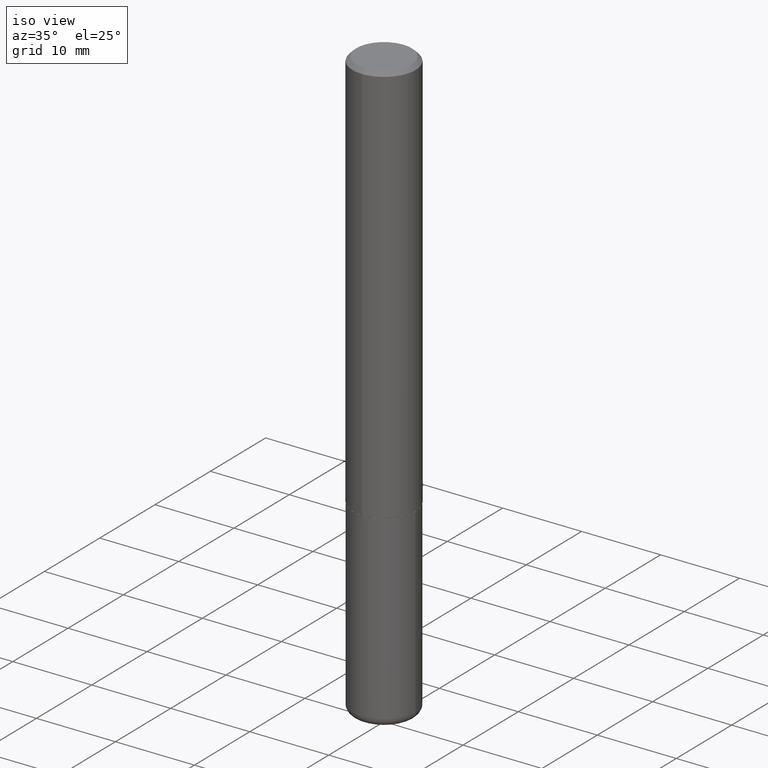
[diagram: clean part render]
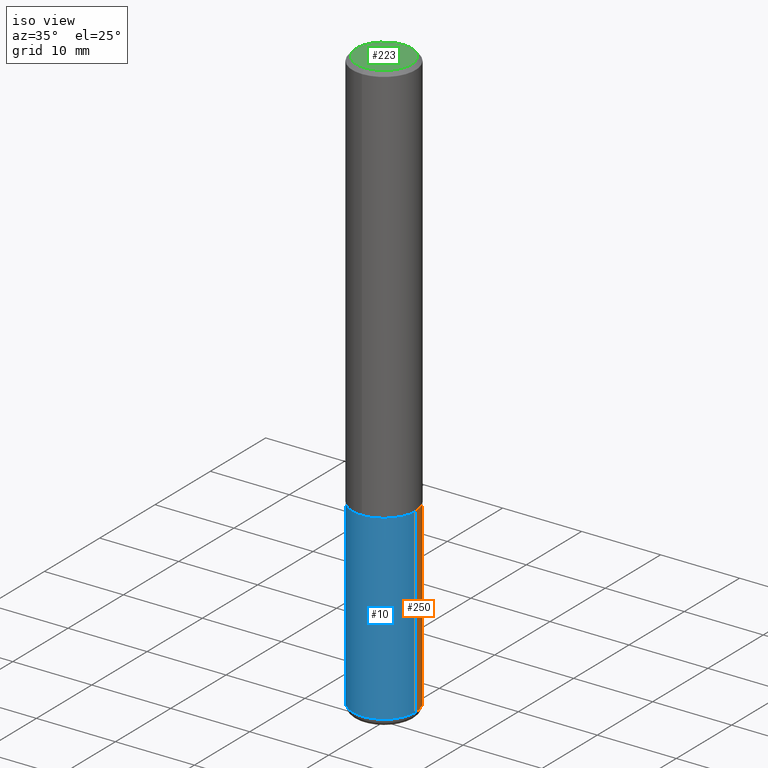
[diagram: same view with three faces highlighted in distinct colors, each labeled with its STEP entity id]
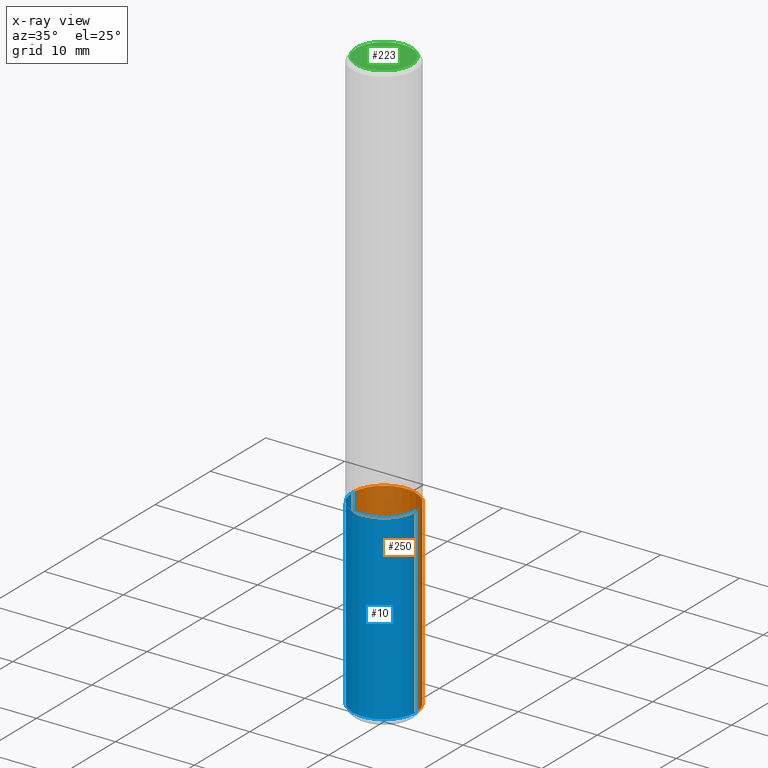
[diagram: x-ray of the same camera — body ghosted, the three highlighted faces saturated]
A machine part, iso view with three faces highlighted in distinct colors.
The next image is the same camera in x-ray (body ghosted, the three faces saturated) — at least one of them is partly hidden behind the body in this view.
Their STEP definitions:

[orange] entity #250 — the highlighted cylindrical surface (partial cylindrical patch) has radius 4.0005 mm, axis along (-0, 0, 1).
#4 = CARTESIAN_POINT ( 'NONE',  ( 0.1575000000000000011, -1.099816621735586889E-15, 7.679978421878598033E-30 ) ) ;
#6 = CARTESIAN_POINT ( 'NONE',  ( -0.1575000000000000289, -9.052976923763463288E-15, -2.913399999999999768 ) ) ;
#20 = CARTESIAN_POINT ( 'NONE',  ( 4.910256815939135309E-29, -7.010545380263150922E-15, -2.007899999999999796 ) ) ;
#30 = VECTOR ( 'NONE', #245, 39.37007874015748143 ) ;
#32 = CARTESIAN_POINT ( 'NONE',  ( -0.1575000000000000011, -7.472208747602227514E-15, -2.007899999999999796 ) ) ;
#51 = DIRECTION ( 'NONE',  ( 1.000000000000000000, -6.982962677686265922E-15, 4.876176775795935232E-29 ) ) ;
#62 = VERTEX_POINT ( 'NONE', #6 ) ;
#75 = DIRECTION ( 'NONE',  ( -2.445468806185136597E-29, 3.491481338843145583E-15, 1.000000000000000000 ) ) ;
#93 = VERTEX_POINT ( 'NONE', #251 ) ;
#117 = EDGE_CURVE ( 'NONE', #93, #124, #242, .T. ) ;
#124 = VERTEX_POINT ( 'NONE', #32 ) ;
#140 = EDGE_CURVE ( 'NONE', #368, #62, #312, .T. ) ;
#150 = DIRECTION ( 'NONE',  ( 1.000000000000000000, -6.982962677686268288E-15, 0.000000000000000000 ) ) ;
#164 = LINE ( 'NONE', #347, #306 ) ;
#166 = DIRECTION ( 'NONE',  ( -2.445468806185136597E-29, 3.491481338843145583E-15, 1.000000000000000000 ) ) ;
#186 = AXIS2_PLACEMENT_3D ( 'NONE', #194, #166, #400 ) ;
#194 = CARTESIAN_POINT ( 'NONE',  ( 7.124628819939776708E-29, -1.017208173258561931E-14, -2.913399999999999768 ) ) ;
#214 = AXIS2_PLACEMENT_3D ( 'NONE', #236, #75, #51 ) ;
#224 = LINE ( 'NONE', #4, #30 ) ;
#236 = CARTESIAN_POINT ( 'NONE',  ( 0.000000000000000000, 0.000000000000000000, 0.000000000000000000 ) ) ;
#241 = CYLINDRICAL_SURFACE ( 'NONE', #214, 0.1575000000000000011 ) ;
#242 = CIRCLE ( 'NONE', #334, 0.1575000000000000011 ) ;
#245 = DIRECTION ( 'NONE',  ( -2.445468806185136877E-29, 3.491481338843145188E-15, 1.000000000000000000 ) ) ;
#250 = ADVANCED_FACE ( 'NONE', ( #395 ), #241, .T. ) ;
#251 = CARTESIAN_POINT ( 'NONE',  ( 0.1575000000000000011, -8.110362001998737613E-15, -2.007899999999999796 ) ) ;
#306 = VECTOR ( 'NONE', #350, 39.37007874015748143 ) ;
#312 = CIRCLE ( 'NONE', #186, 0.1575000000000000011 ) ;
#316 = EDGE_CURVE ( 'NONE', #368, #93, #224, .T. ) ;
#322 = EDGE_CURVE ( 'NONE', #62, #124, #164, .T. ) ;
#334 = AXIS2_PLACEMENT_3D ( 'NONE', #20, #382, #150 ) ;
#335 = CARTESIAN_POINT ( 'NONE',  ( 0.1575000000000000289, -1.127189835432120758E-14, -2.913399999999999768 ) ) ;
#343 = EDGE_LOOP ( 'NONE', ( #387, #353, #364, #391 ) ) ;
#347 = CARTESIAN_POINT ( 'NONE',  ( -0.1575000000000000011, 1.119104808822157801E-15, -7.747322767151475583E-30 ) ) ;
#350 = DIRECTION ( 'NONE',  ( -2.445468806185136877E-29, 3.491481338843145188E-15, 1.000000000000000000 ) ) ;
#353 = ORIENTED_EDGE ( 'NONE', *, *, #322, .T. ) ;
#364 = ORIENTED_EDGE ( 'NONE', *, *, #117, .F. ) ;
#368 = VERTEX_POINT ( 'NONE', #335 ) ;
#382 = DIRECTION ( 'NONE',  ( -2.445468806185136597E-29, 3.491481338843145583E-15, 1.000000000000000000 ) ) ;
#387 = ORIENTED_EDGE ( 'NONE', *, *, #140, .T. ) ;
#391 = ORIENTED_EDGE ( 'NONE', *, *, #316, .F. ) ;
#395 = FACE_OUTER_BOUND ( 'NONE', #343, .T. ) ;
#400 = DIRECTION ( 'NONE',  ( 1.000000000000000000, -6.982962677686261977E-15, 0.000000000000000000 ) ) ;

[blue] entity #10 — the highlighted cylindrical surface (partial cylindrical patch) has radius 4.0005 mm, axis along (-0, 0, 1).
#1 = AXIS2_PLACEMENT_3D ( 'NONE', #279, #302, #403 ) ;
#4 = CARTESIAN_POINT ( 'NONE',  ( 0.1575000000000000011, -1.099816621735586889E-15, 7.679978421878598033E-30 ) ) ;
#6 = CARTESIAN_POINT ( 'NONE',  ( -0.1575000000000000289, -9.052976923763463288E-15, -2.913399999999999768 ) ) ;
#10 = ADVANCED_FACE ( 'NONE', ( #182 ), #106, .T. ) ;
#16 = CARTESIAN_POINT ( 'NONE',  ( 4.910256815939135309E-29, -7.010545380263150922E-15, -2.007899999999999796 ) ) ;
#30 = VECTOR ( 'NONE', #245, 39.37007874015748143 ) ;
#32 = CARTESIAN_POINT ( 'NONE',  ( -0.1575000000000000011, -7.472208747602227514E-15, -2.007899999999999796 ) ) ;
#34 = EDGE_LOOP ( 'NONE', ( #179, #127, #293, #83 ) ) ;
#53 = CIRCLE ( 'NONE', #101, 0.1575000000000000011 ) ;
#62 = VERTEX_POINT ( 'NONE', #6 ) ;
#83 = ORIENTED_EDGE ( 'NONE', *, *, #281, .F. ) ;
#93 = VERTEX_POINT ( 'NONE', #251 ) ;
#101 = AXIS2_PLACEMENT_3D ( 'NONE', #16, #276, #103 ) ;
#103 = DIRECTION ( 'NONE',  ( 1.000000000000000000, -6.982962677686268288E-15, 0.000000000000000000 ) ) ;
#106 = CYLINDRICAL_SURFACE ( 'NONE', #1, 0.1575000000000000011 ) ;
#124 = VERTEX_POINT ( 'NONE', #32 ) ;
#127 = ORIENTED_EDGE ( 'NONE', *, *, #286, .T. ) ;
#149 = DIRECTION ( 'NONE',  ( -2.445468806185136597E-29, 3.491481338843145583E-15, 1.000000000000000000 ) ) ;
#164 = LINE ( 'NONE', #347, #306 ) ;
#179 = ORIENTED_EDGE ( 'NONE', *, *, #322, .F. ) ;
#182 = FACE_OUTER_BOUND ( 'NONE', #34, .T. ) ;
#183 = CARTESIAN_POINT ( 'NONE',  ( 7.124628819939776708E-29, -1.017208173258561931E-14, -2.913399999999999768 ) ) ;
#224 = LINE ( 'NONE', #4, #30 ) ;
#245 = DIRECTION ( 'NONE',  ( -2.445468806185136877E-29, 3.491481338843145188E-15, 1.000000000000000000 ) ) ;
#251 = CARTESIAN_POINT ( 'NONE',  ( 0.1575000000000000011, -8.110362001998737613E-15, -2.007899999999999796 ) ) ;
#253 = CIRCLE ( 'NONE', #317, 0.1575000000000000011 ) ;
#276 = DIRECTION ( 'NONE',  ( -2.445468806185136597E-29, 3.491481338843145583E-15, 1.000000000000000000 ) ) ;
#279 = CARTESIAN_POINT ( 'NONE',  ( 0.000000000000000000, 0.000000000000000000, 0.000000000000000000 ) ) ;
#281 = EDGE_CURVE ( 'NONE', #124, #93, #53, .T. ) ;
#286 = EDGE_CURVE ( 'NONE', #62, #368, #253, .T. ) ;
#293 = ORIENTED_EDGE ( 'NONE', *, *, #316, .T. ) ;
#302 = DIRECTION ( 'NONE',  ( -2.445468806185136597E-29, 3.491481338843145583E-15, 1.000000000000000000 ) ) ;
#306 = VECTOR ( 'NONE', #350, 39.37007874015748143 ) ;
#316 = EDGE_CURVE ( 'NONE', #368, #93, #224, .T. ) ;
#317 = AXIS2_PLACEMENT_3D ( 'NONE', #183, #149, #410 ) ;
#322 = EDGE_CURVE ( 'NONE', #62, #124, #164, .T. ) ;
#335 = CARTESIAN_POINT ( 'NONE',  ( 0.1575000000000000289, -1.127189835432120758E-14, -2.913399999999999768 ) ) ;
#347 = CARTESIAN_POINT ( 'NONE',  ( -0.1575000000000000011, 1.119104808822157801E-15, -7.747322767151475583E-30 ) ) ;
#350 = DIRECTION ( 'NONE',  ( -2.445468806185136877E-29, 3.491481338843145188E-15, 1.000000000000000000 ) ) ;
#368 = VERTEX_POINT ( 'NONE', #335 ) ;
#403 = DIRECTION ( 'NONE',  ( 1.000000000000000000, -6.982962677686265922E-15, 4.876176775795935232E-29 ) ) ;
#410 = DIRECTION ( 'NONE',  ( 1.000000000000000000, -6.982962677686261977E-15, 0.000000000000000000 ) ) ;

[green] entity #223 — the highlighted planar face has unit normal (0, -0, -1).
#8 = CARTESIAN_POINT ( 'NONE',  ( -1.011923454671299856E-15, -0.1374999999999997335, 7.578230169990059811E-16 ) ) ;
#17 = PLANE ( 'NONE',  #154 ) ;
#29 = DIRECTION ( 'NONE',  ( -2.444729828315544280E-29, 3.492539597212409932E-15, 1.000000000000000000 ) ) ;
#35 = ORIENTED_EDGE ( 'NONE', *, *, #413, .T. ) ;
#42 = CARTESIAN_POINT ( 'NONE',  ( 9.601573681818597005E-16, 0.1374999999999997335, -3.414247834255550788E-16 ) ) ;
#104 = DIRECTION ( 'NONE',  ( 2.444729828315543719E-29, -3.492539597212410327E-15, -1.000000000000000000 ) ) ;
#109 = EDGE_CURVE ( 'NONE', #394, #246, #267, .T. ) ;
#134 = CARTESIAN_POINT ( 'NONE',  ( -6.786541213832790321E-45, 9.695248793097192351E-31, 2.775988223823005522E-16 ) ) ;
#154 = AXIS2_PLACEMENT_3D ( 'NONE', #42, #104, #300 ) ;
#174 = DIRECTION ( 'NONE',  ( -2.444729828315544280E-29, 3.492539597212409932E-15, 1.000000000000000000 ) ) ;
#185 = AXIS2_PLACEMENT_3D ( 'NONE', #303, #29, #255 ) ;
#196 = EDGE_LOOP ( 'NONE', ( #310, #35 ) ) ;
#223 = ADVANCED_FACE ( 'NONE', ( #362 ), #17, .F. ) ;
#238 = DIRECTION ( 'NONE',  ( -6.982962677686265922E-15, -1.000000000000000000, 3.492539597212410327E-15 ) ) ;
#243 = AXIS2_PLACEMENT_3D ( 'NONE', #134, #174, #238 ) ;
#246 = VERTEX_POINT ( 'NONE', #8 ) ;
#255 = DIRECTION ( 'NONE',  ( -6.982962677686265922E-15, -1.000000000000000000, 3.492539597212410327E-15 ) ) ;
#267 = CIRCLE ( 'NONE', #185, 0.1374999999999997335 ) ;
#273 = CARTESIAN_POINT ( 'NONE',  ( 1.029986994958723590E-15, 0.1374999999999997335, -2.026253722344048274E-16 ) ) ;
#300 = DIRECTION ( 'NONE',  ( 6.982962677686265922E-15, 1.000000000000000000, -3.492539597212410327E-15 ) ) ;
#303 = CARTESIAN_POINT ( 'NONE',  ( -6.786541213832790321E-45, 9.695248793097192351E-31, 2.775988223823005522E-16 ) ) ;
#310 = ORIENTED_EDGE ( 'NONE', *, *, #109, .T. ) ;
#362 = FACE_OUTER_BOUND ( 'NONE', #196, .T. ) ;
#394 = VERTEX_POINT ( 'NONE', #273 ) ;
#408 = CIRCLE ( 'NONE', #243, 0.1374999999999997335 ) ;
#413 = EDGE_CURVE ( 'NONE', #246, #394, #408, .T. ) ;